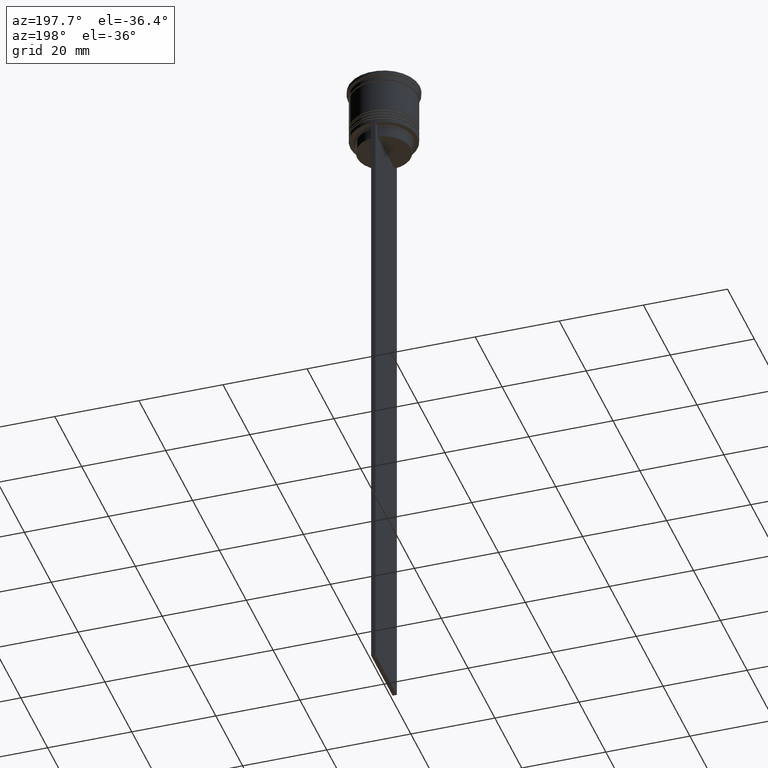
[diagram: clean part render]
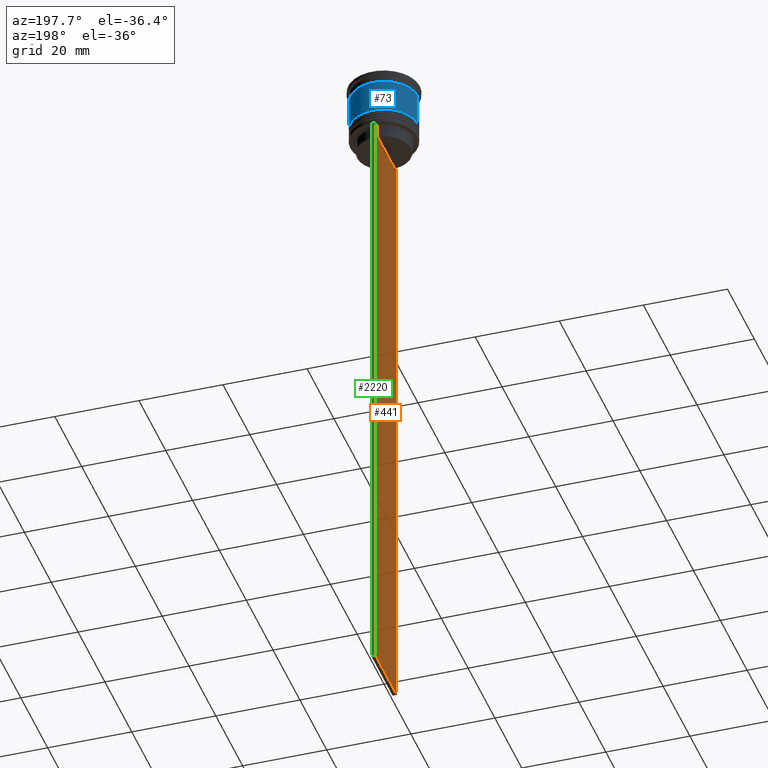
[diagram: same view with three faces highlighted in distinct colors, each labeled with its STEP entity id]
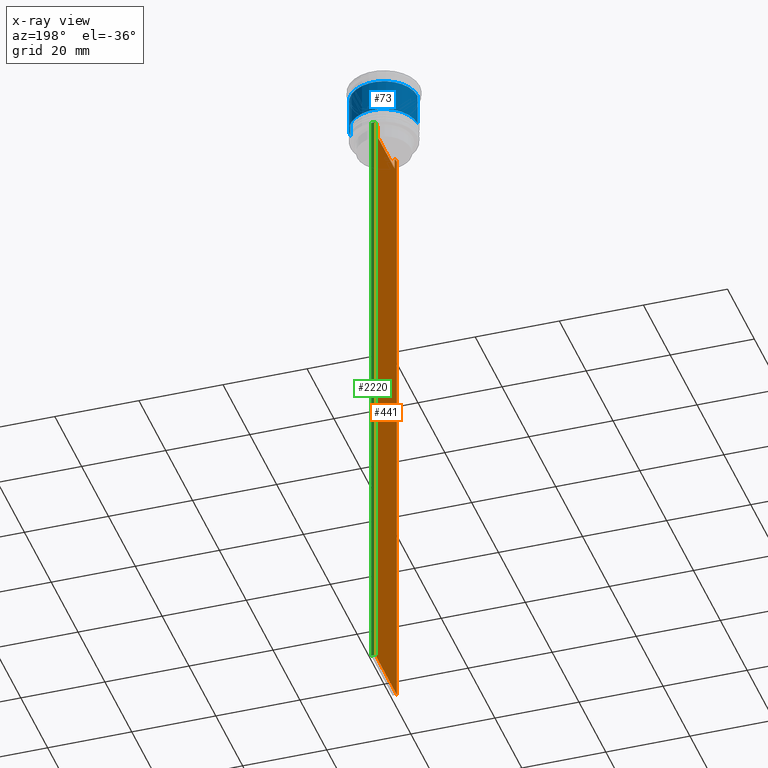
[diagram: x-ray of the same camera — body ghosted, the three highlighted faces saturated]
A machine part, auxiliary view with three faces highlighted in distinct colors.
The next image is the same camera in x-ray (body ghosted, the three faces saturated) — at least one of them is partly hidden behind the body in this view.
Their STEP definitions:

[orange] entity #441 — the highlighted planar face has unit normal (-1, 0, 0).
#22 = CARTESIAN_POINT ( 'NONE',  ( -0.4999999999999998890, -6.881860213634098500, -14.00000000000000178 ) ) ;
#75 = EDGE_LOOP ( 'NONE', ( #2202, #555, #915, #1456, #2240, #2034, #775, #1394, #404, #1410, #2447, #1178 ) ) ;
#87 = VECTOR ( 'NONE', #1837, 1000.000000000000000 ) ;
#89 = VECTOR ( 'NONE', #1720, 1000.000000000000000 ) ;
#107 = VERTEX_POINT ( 'NONE', #1064 ) ;
#152 = B_SPLINE_CURVE_WITH_KNOTS ( 'NONE', 3,
 ( #944, #972, #1715, #22 ),
 .UNSPECIFIED., .F., .F.,
 ( 4, 4 ),
 ( 0.02996184199614749730, 0.03067452609193703841 ),
 .UNSPECIFIED. ) ;
#171 = VECTOR ( 'NONE', #1540, 1000.000000000000000 ) ;
#187 = EDGE_CURVE ( 'NONE', #869, #1420, #152, .T. ) ;
#196 = LINE ( 'NONE', #1536, #2339 ) ;
#246 = LINE ( 'NONE', #2174, #1166 ) ;
#273 = CARTESIAN_POINT ( 'NONE',  ( -0.4999999999999998890, 6.380438856379708312, -14.50000000000000000 ) ) ;
#276 = LINE ( 'NONE', #2383, #1201 ) ;
#286 = CARTESIAN_POINT ( 'NONE',  ( -0.4999999999999998890, -8.000000000000003553, -14.00000000000000178 ) ) ;
#331 = CARTESIAN_POINT ( 'NONE',  ( -0.4999999999999998890, -8.000000000000003553, 2.031219541881394530 ) ) ;
#340 = LINE ( 'NONE', #2029, #87 ) ;
#341 = CARTESIAN_POINT ( 'NONE',  ( -0.4999999999999998890, 6.547597841304911626, -14.33335192459222718 ) ) ;
#346 = DIRECTION ( 'NONE',  ( -1.000000000000000000, 0.000000000000000000, 0.000000000000000000 ) ) ;
#358 = CARTESIAN_POINT ( 'NONE',  ( -0.4999999999999998890, -8.000000000000003553, -163.9999999999999716 ) ) ;
#404 = ORIENTED_EDGE ( 'NONE', *, *, #187, .F. ) ;
#441 = ADVANCED_FACE ( 'NONE', ( #1658 ), #891, .T. ) ;
#444 = DIRECTION ( 'NONE',  ( 0.000000000000000000, -1.000000000000000000, 0.000000000000000000 ) ) ;
#453 = LINE ( 'NONE', #286, #690 ) ;
#478 = CARTESIAN_POINT ( 'NONE',  ( -0.4999999999999998890, 6.380438856379708312, 0.000000000000000000 ) ) ;
#515 = DIRECTION ( 'NONE',  ( 0.000000000000000000, 0.000000000000000000, 1.000000000000000000 ) ) ;
#555 = ORIENTED_EDGE ( 'NONE', *, *, #1299, .F. ) ;
#578 = VECTOR ( 'NONE', #659, 1000.000000000000000 ) ;
#621 = VERTEX_POINT ( 'NONE', #2083 ) ;
#659 = DIRECTION ( 'NONE',  ( -0.000000000000000000, -0.000000000000000000, 1.000000000000000000 ) ) ;
#664 = EDGE_CURVE ( 'NONE', #1976, #2451, #1332, .T. ) ;
#690 = VECTOR ( 'NONE', #1035, 1000.000000000000000 ) ;
#709 = EDGE_CURVE ( 'NONE', #621, #1976, #246, .T. ) ;
#722 = EDGE_CURVE ( 'NONE', #1420, #990, #276, .T. ) ;
#723 = CARTESIAN_POINT ( 'NONE',  ( -0.4999999999999998890, 6.380438856379708312, -17.00000000000000000 ) ) ;
#731 = EDGE_CURVE ( 'NONE', #1302, #107, #2159, .T. ) ;
#775 = ORIENTED_EDGE ( 'NONE', *, *, #2241, .F. ) ;
#819 = EDGE_CURVE ( 'NONE', #1076, #1191, #983, .T. ) ;
#855 = CARTESIAN_POINT ( 'NONE',  ( -0.4999999999999998890, 6.714736947114692711, -14.16668390704818847 ) ) ;
#864 = LINE ( 'NONE', #478, #2341 ) ;
#869 = VERTEX_POINT ( 'NONE', #1274 ) ;
#891 = PLANE ( 'NONE',  #1684 ) ;
#910 = CARTESIAN_POINT ( 'NONE',  ( -0.4999999999999998890, 6.881860213634098500, -14.00000000000000178 ) ) ;
#915 = ORIENTED_EDGE ( 'NONE', *, *, #731, .F. ) ;
#944 = CARTESIAN_POINT ( 'NONE',  ( -0.4999999999999998890, -6.380438856379708312, -14.50000000000000000 ) ) ;
#947 = CARTESIAN_POINT ( 'NONE',  ( -0.4999999999999998890, -8.000000000000003553, -14.00000000000000178 ) ) ;
#965 = VERTEX_POINT ( 'NONE', #2081 ) ;
#972 = CARTESIAN_POINT ( 'NONE',  ( -0.4999999999999998890, -6.547597841511246131, -14.33335192438652328 ) ) ;
#983 = B_SPLINE_CURVE_WITH_KNOTS ( 'NONE', 3,
 ( #1618, #855, #341, #2030 ),
 .UNSPECIFIED., .F., .F.,
 ( 4, 4 ),
 ( 0.01172465562756038263, 0.01243276816391822651 ),
 .UNSPECIFIED. ) ;
#990 = VERTEX_POINT ( 'NONE', #1923 ) ;
#999 = EDGE_CURVE ( 'NONE', #1302, #2451, #196, .T. ) ;
#1009 = DIRECTION ( 'NONE',  ( 0.000000000000000000, 0.000000000000000000, -1.000000000000000000 ) ) ;
#1035 = DIRECTION ( 'NONE',  ( 0.000000000000000000, -1.000000000000000000, 0.000000000000000000 ) ) ;
#1064 = CARTESIAN_POINT ( 'NONE',  ( -0.4999999999999998890, 7.884161337770806632, -14.00000000000000178 ) ) ;
#1076 = VERTEX_POINT ( 'NONE', #910 ) ;
#1087 = CARTESIAN_POINT ( 'NONE',  ( -0.4999999999999998890, 7.999999999999996447, -163.9999999999999716 ) ) ;
#1127 = DIRECTION ( 'NONE',  ( 0.000000000000000000, 0.000000000000000000, -1.000000000000000000 ) ) ;
#1145 = CARTESIAN_POINT ( 'NONE',  ( -0.4999999999999998890, -6.881860213634098500, -14.00000000000000178 ) ) ;
#1166 = VECTOR ( 'NONE', #1009, 1000.000000000000000 ) ;
#1178 = ORIENTED_EDGE ( 'NONE', *, *, #2316, .F. ) ;
#1191 = VERTEX_POINT ( 'NONE', #273 ) ;
#1196 = LINE ( 'NONE', #1617, #578 ) ;
#1201 = VECTOR ( 'NONE', #444, 1000.000000000000000 ) ;
#1274 = CARTESIAN_POINT ( 'NONE',  ( -0.4999999999999998890, -6.380438856379708312, -14.50000000000000000 ) ) ;
#1299 = EDGE_CURVE ( 'NONE', #107, #1076, #1874, .T. ) ;
#1302 = VERTEX_POINT ( 'NONE', #1529 ) ;
#1332 = LINE ( 'NONE', #2101, #171 ) ;
#1340 = VERTEX_POINT ( 'NONE', #723 ) ;
#1394 = ORIENTED_EDGE ( 'NONE', *, *, #722, .F. ) ;
#1410 = ORIENTED_EDGE ( 'NONE', *, *, #2229, .F. ) ;
#1420 = VERTEX_POINT ( 'NONE', #1145 ) ;
#1456 = ORIENTED_EDGE ( 'NONE', *, *, #999, .T. ) ;
#1529 = CARTESIAN_POINT ( 'NONE',  ( -0.4999999999999998890, 7.999999999999996447, -14.00000000000000178 ) ) ;
#1536 = CARTESIAN_POINT ( 'NONE',  ( -0.4999999999999998890, 7.999999999999996447, 2.031219541881394530 ) ) ;
#1540 = DIRECTION ( 'NONE',  ( 0.000000000000000000, 1.000000000000000000, 0.000000000000000000 ) ) ;
#1583 = DIRECTION ( 'NONE',  ( 0.000000000000000000, -1.000000000000000000, 0.000000000000000000 ) ) ;
#1617 = CARTESIAN_POINT ( 'NONE',  ( -0.4999999999999998890, -6.380438856379708312, 0.000000000000000000 ) ) ;
#1618 = CARTESIAN_POINT ( 'NONE',  ( -0.4999999999999998890, 6.881860213634098500, -14.00000000000000178 ) ) ;
#1658 = FACE_OUTER_BOUND ( 'NONE', #75, .T. ) ;
#1684 = AXIS2_PLACEMENT_3D ( 'NONE', #331, #346, #515 ) ;
#1715 = CARTESIAN_POINT ( 'NONE',  ( -0.4999999999999998890, -6.714736947305992132, -14.16668390685738999 ) ) ;
#1720 = DIRECTION ( 'NONE',  ( 0.000000000000000000, -1.000000000000000000, 0.000000000000000000 ) ) ;
#1789 = CARTESIAN_POINT ( 'NONE',  ( -0.4999999999999998890, -8.000000000000003553, -14.00000000000000178 ) ) ;
#1837 = DIRECTION ( 'NONE',  ( 0.000000000000000000, -1.000000000000000000, 0.000000000000000000 ) ) ;
#1874 = LINE ( 'NONE', #947, #89 ) ;
#1923 = CARTESIAN_POINT ( 'NONE',  ( -0.4999999999999998890, -7.884161337770806632, -14.00000000000000178 ) ) ;
#1976 = VERTEX_POINT ( 'NONE', #358 ) ;
#2003 = DIRECTION ( 'NONE',  ( 0.000000000000000000, 0.000000000000000000, -1.000000000000000000 ) ) ;
#2029 = CARTESIAN_POINT ( 'NONE',  ( -0.4999999999999998890, 6.399999999999999467, -17.00000000000000000 ) ) ;
#2030 = CARTESIAN_POINT ( 'NONE',  ( -0.4999999999999998890, 6.380438856379708312, -14.50000000000000000 ) ) ;
#2034 = ORIENTED_EDGE ( 'NONE', *, *, #709, .F. ) ;
#2081 = CARTESIAN_POINT ( 'NONE',  ( -0.4999999999999998890, -6.380438856379708312, -17.00000000000000000 ) ) ;
#2083 = CARTESIAN_POINT ( 'NONE',  ( -0.4999999999999998890, -8.000000000000003553, -14.00000000000000178 ) ) ;
#2101 = CARTESIAN_POINT ( 'NONE',  ( -0.4999999999999998890, -8.000000000000003553, -163.9999999999999716 ) ) ;
#2159 = LINE ( 'NONE', #1789, #2301 ) ;
#2174 = CARTESIAN_POINT ( 'NONE',  ( -0.4999999999999998890, -8.000000000000003553, 2.031219541881394530 ) ) ;
#2202 = ORIENTED_EDGE ( 'NONE', *, *, #819, .F. ) ;
#2229 = EDGE_CURVE ( 'NONE', #965, #869, #1196, .T. ) ;
#2240 = ORIENTED_EDGE ( 'NONE', *, *, #664, .F. ) ;
#2241 = EDGE_CURVE ( 'NONE', #990, #621, #453, .T. ) ;
#2301 = VECTOR ( 'NONE', #1583, 1000.000000000000000 ) ;
#2316 = EDGE_CURVE ( 'NONE', #1191, #1340, #864, .T. ) ;
#2339 = VECTOR ( 'NONE', #1127, 1000.000000000000000 ) ;
#2341 = VECTOR ( 'NONE', #2003, 1000.000000000000000 ) ;
#2383 = CARTESIAN_POINT ( 'NONE',  ( -0.4999999999999998890, -8.000000000000003553, -14.00000000000000178 ) ) ;
#2425 = EDGE_CURVE ( 'NONE', #1340, #965, #340, .T. ) ;
#2447 = ORIENTED_EDGE ( 'NONE', *, *, #2425, .F. ) ;
#2451 = VERTEX_POINT ( 'NONE', #1087 ) ;

[blue] entity #73 — the highlighted cylindrical surface (edge-blend (fillet) strip) has radius 8 mm, axis along (-0, -0, 1).
#14 = ORIENTED_EDGE ( 'NONE', *, *, #776, .F. ) ;
#49 = CIRCLE ( 'NONE', #298, 8.000000000000001776 ) ;
#73 = ADVANCED_FACE ( 'NONE', ( #1054 ), #718, .T. ) ;
#83 = VERTEX_POINT ( 'NONE', #878 ) ;
#154 = LINE ( 'NONE', #2271, #2374 ) ;
#173 = CIRCLE ( 'NONE', #538, 7.999999999999998224 ) ;
#298 = AXIS2_PLACEMENT_3D ( 'NONE', #2033, #332, #1300 ) ;
#332 = DIRECTION ( 'NONE',  ( -0.000000000000000000, -0.000000000000000000, 1.000000000000000000 ) ) ;
#348 = DIRECTION ( 'NONE',  ( -0.000000000000000000, -0.000000000000000000, 1.000000000000000000 ) ) ;
#361 = ORIENTED_EDGE ( 'NONE', *, *, #2153, .F. ) ;
#479 = DIRECTION ( 'NONE',  ( 1.000000000000000000, 0.000000000000000000, 0.000000000000000000 ) ) ;
#538 = AXIS2_PLACEMENT_3D ( 'NONE', #1402, #2184, #479 ) ;
#718 = CYLINDRICAL_SURFACE ( 'NONE', #2084, 8.000000000000000000 ) ;
#776 = EDGE_CURVE ( 'NONE', #83, #985, #173, .T. ) ;
#847 = CARTESIAN_POINT ( 'NONE',  ( -8.000000000000001776, 9.797174393178827630E-16, -10.50000000000000000 ) ) ;
#878 = CARTESIAN_POINT ( 'NONE',  ( 7.999999999999998224, 0.000000000000000000, -2.700000000000001510 ) ) ;
#985 = VERTEX_POINT ( 'NONE', #2281 ) ;
#1054 = FACE_OUTER_BOUND ( 'NONE', #1884, .T. ) ;
#1125 = DIRECTION ( 'NONE',  ( -0.000000000000000000, -0.000000000000000000, 1.000000000000000000 ) ) ;
#1248 = DIRECTION ( 'NONE',  ( -0.000000000000000000, -0.000000000000000000, 1.000000000000000000 ) ) ;
#1267 = DIRECTION ( 'NONE',  ( 1.000000000000000000, 0.000000000000000000, 0.000000000000000000 ) ) ;
#1300 = DIRECTION ( 'NONE',  ( 1.000000000000000000, 0.000000000000000000, 0.000000000000000000 ) ) ;
#1402 = CARTESIAN_POINT ( 'NONE',  ( 0.000000000000000000, 0.000000000000000000, -2.700000000000001510 ) ) ;
#1483 = VECTOR ( 'NONE', #1248, 1000.000000000000000 ) ;
#1559 = VERTEX_POINT ( 'NONE', #1719 ) ;
#1629 = VERTEX_POINT ( 'NONE', #847 ) ;
#1719 = CARTESIAN_POINT ( 'NONE',  ( 8.000000000000001776, 0.000000000000000000, -10.50000000000000000 ) ) ;
#1741 = ORIENTED_EDGE ( 'NONE', *, *, #1839, .T. ) ;
#1839 = EDGE_CURVE ( 'NONE', #1629, #985, #2192, .T. ) ;
#1884 = EDGE_LOOP ( 'NONE', ( #2345, #1741, #14, #361 ) ) ;
#2033 = CARTESIAN_POINT ( 'NONE',  ( 0.000000000000000000, 0.000000000000000000, -10.50000000000000000 ) ) ;
#2066 = CARTESIAN_POINT ( 'NONE',  ( -8.000000000000000000, 9.797174393178825657E-16, 0.000000000000000000 ) ) ;
#2084 = AXIS2_PLACEMENT_3D ( 'NONE', #2468, #348, #1267 ) ;
#2153 = EDGE_CURVE ( 'NONE', #1559, #83, #154, .T. ) ;
#2184 = DIRECTION ( 'NONE',  ( -0.000000000000000000, -0.000000000000000000, 1.000000000000000000 ) ) ;
#2192 = LINE ( 'NONE', #2066, #1483 ) ;
#2217 = EDGE_CURVE ( 'NONE', #1559, #1629, #49, .T. ) ;
#2271 = CARTESIAN_POINT ( 'NONE',  ( 8.000000000000000000, 0.000000000000000000, 0.000000000000000000 ) ) ;
#2281 = CARTESIAN_POINT ( 'NONE',  ( -7.999999999999998224, 9.797174393178823685E-16, -2.700000000000001510 ) ) ;
#2345 = ORIENTED_EDGE ( 'NONE', *, *, #2217, .T. ) ;
#2374 = VECTOR ( 'NONE', #1125, 1000.000000000000000 ) ;
#2468 = CARTESIAN_POINT ( 'NONE',  ( 0.000000000000000000, 0.000000000000000000, 0.000000000000000000 ) ) ;

[green] entity #2220 — the highlighted planar face has unit normal (0, -1, -0).
#59 = LINE ( 'NONE', #1393, #531 ) ;
#99 = CARTESIAN_POINT ( 'NONE',  ( 0.5000000000000001110, 7.999999999999996447, -14.00000000000000178 ) ) ;
#196 = LINE ( 'NONE', #1536, #2339 ) ;
#272 = VERTEX_POINT ( 'NONE', #1562 ) ;
#345 = PLANE ( 'NONE',  #2218 ) ;
#463 = VECTOR ( 'NONE', #1763, 1000.000000000000000 ) ;
#531 = VECTOR ( 'NONE', #832, 1000.000000000000000 ) ;
#574 = FACE_OUTER_BOUND ( 'NONE', #905, .T. ) ;
#629 = CARTESIAN_POINT ( 'NONE',  ( 0.5000000000000001110, 7.999999999999996447, 2.031219541881394530 ) ) ;
#807 = EDGE_CURVE ( 'NONE', #2233, #272, #1953, .T. ) ;
#832 = DIRECTION ( 'NONE',  ( -1.000000000000000000, 0.000000000000000000, 0.000000000000000000 ) ) ;
#905 = EDGE_LOOP ( 'NONE', ( #1122, #1354, #1776, #1770 ) ) ;
#999 = EDGE_CURVE ( 'NONE', #1302, #2451, #196, .T. ) ;
#1043 = VECTOR ( 'NONE', #1231, 1000.000000000000000 ) ;
#1087 = CARTESIAN_POINT ( 'NONE',  ( -0.4999999999999998890, 7.999999999999996447, -163.9999999999999716 ) ) ;
#1122 = ORIENTED_EDGE ( 'NONE', *, *, #999, .F. ) ;
#1127 = DIRECTION ( 'NONE',  ( 0.000000000000000000, 0.000000000000000000, -1.000000000000000000 ) ) ;
#1231 = DIRECTION ( 'NONE',  ( 1.000000000000000000, 0.000000000000000000, 0.000000000000000000 ) ) ;
#1302 = VERTEX_POINT ( 'NONE', #1529 ) ;
#1354 = ORIENTED_EDGE ( 'NONE', *, *, #2266, .T. ) ;
#1380 = CARTESIAN_POINT ( 'NONE',  ( 0.5000000000000001110, 7.999999999999996447, 2.031219541881394530 ) ) ;
#1393 = CARTESIAN_POINT ( 'NONE',  ( 0.5000000000000001110, 7.999999999999996447, -163.9999999999999716 ) ) ;
#1529 = CARTESIAN_POINT ( 'NONE',  ( -0.4999999999999998890, 7.999999999999996447, -14.00000000000000178 ) ) ;
#1536 = CARTESIAN_POINT ( 'NONE',  ( -0.4999999999999998890, 7.999999999999996447, 2.031219541881394530 ) ) ;
#1562 = CARTESIAN_POINT ( 'NONE',  ( 0.5000000000000001110, 7.999999999999996447, -163.9999999999999716 ) ) ;
#1584 = EDGE_CURVE ( 'NONE', #272, #2451, #59, .T. ) ;
#1763 = DIRECTION ( 'NONE',  ( 0.000000000000000000, 0.000000000000000000, -1.000000000000000000 ) ) ;
#1770 = ORIENTED_EDGE ( 'NONE', *, *, #1584, .T. ) ;
#1776 = ORIENTED_EDGE ( 'NONE', *, *, #807, .T. ) ;
#1953 = LINE ( 'NONE', #1380, #463 ) ;
#2089 = DIRECTION ( 'NONE',  ( 0.000000000000000000, -1.000000000000000000, -0.000000000000000000 ) ) ;
#2183 = LINE ( 'NONE', #99, #1043 ) ;
#2196 = CARTESIAN_POINT ( 'NONE',  ( 0.5000000000000001110, 7.999999999999996447, -14.00000000000000178 ) ) ;
#2218 = AXIS2_PLACEMENT_3D ( 'NONE', #629, #2089, #2461 ) ;
#2220 = ADVANCED_FACE ( 'NONE', ( #574 ), #345, .F. ) ;
#2233 = VERTEX_POINT ( 'NONE', #2196 ) ;
#2266 = EDGE_CURVE ( 'NONE', #1302, #2233, #2183, .T. ) ;
#2339 = VECTOR ( 'NONE', #1127, 1000.000000000000000 ) ;
#2451 = VERTEX_POINT ( 'NONE', #1087 ) ;
#2461 = DIRECTION ( 'NONE',  ( 0.000000000000000000, 0.000000000000000000, -1.000000000000000000 ) ) ;